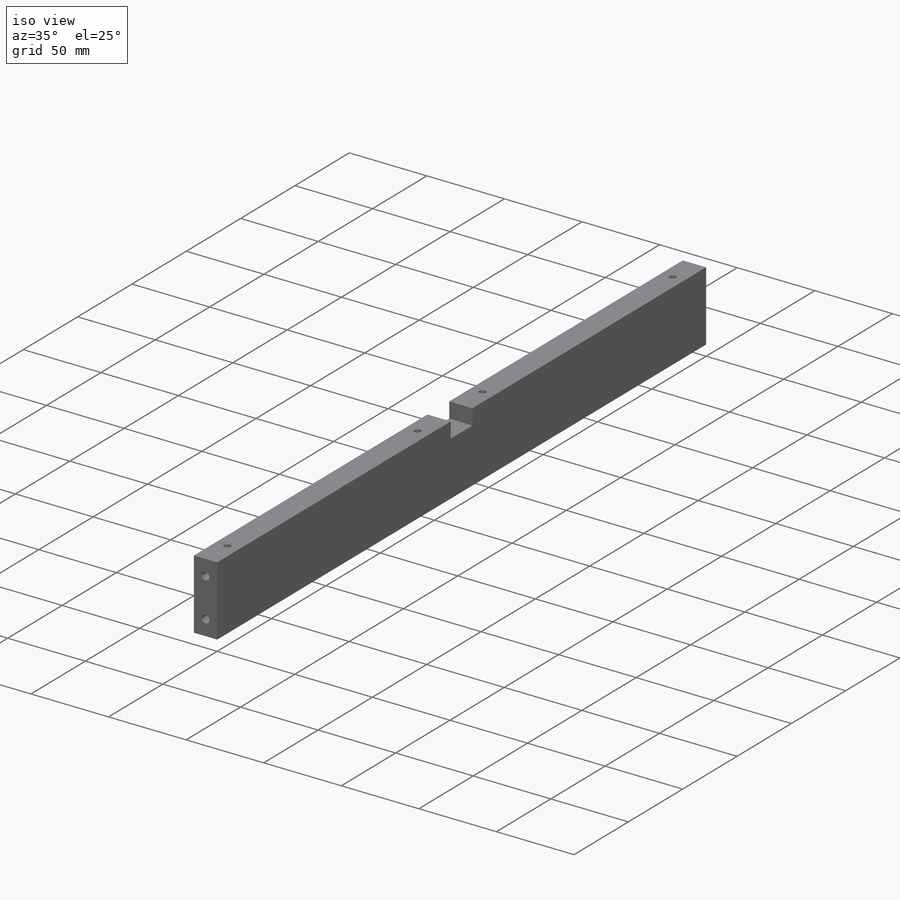
[diagram: iso view]
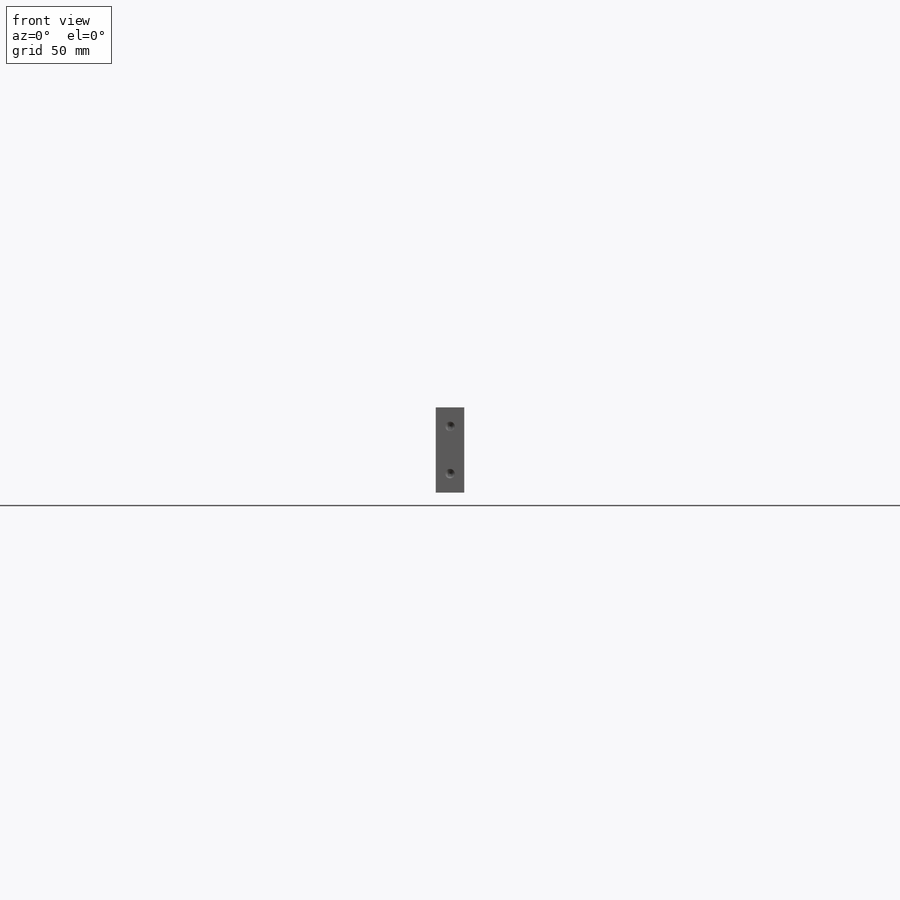
[diagram: front view]
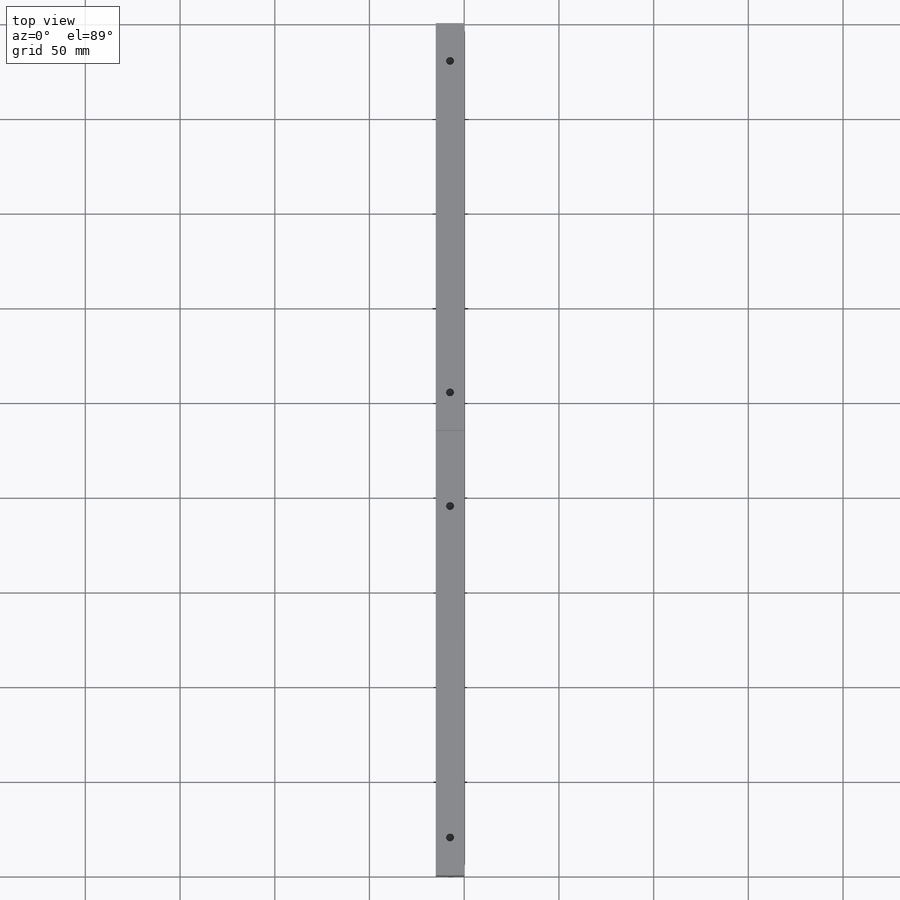
[diagram: top view]
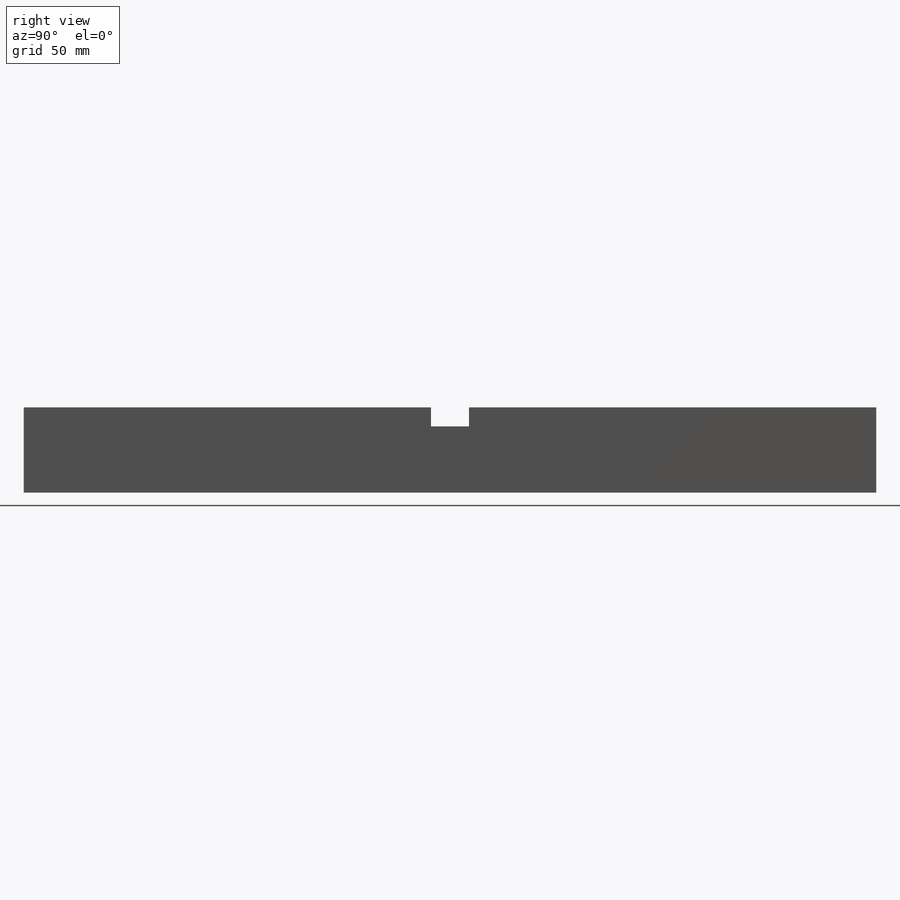
[diagram: right view]
SOLIDWORKS PART (.sldprt)
format: sldprt  version: not decoded by parser v0  size: 272,896 bytes
history: native  units: mm
features: sketch x8, plane x3, hole x3, material x1, extrude x1, cut_extrude x1 (+10 scaffold rows collapsed)
feature tree (27):
  scaffold x10  (default folders/planes/origin — collapsed)
  material  "Matériau <non spécifié>"
  plane  "Plan de face"
  plane  "Plan de dessus"
  plane  "Plan de droite"
  sketch  "Esquisse1"  dims[D1=15.0mm D2=45.0mm]
  extrude  "Boss.-Extru.1"  Depth=450mm
  hole  "Trou pour taraudage pour trou taraudé M61"  Diameter=5mm Depth=10mm
  sketch  "Esquisse7"  dims[D1=10.0mm D2=10.0mm D3=7.5mm D4=7.5mm]
  sketch  "Esquisse6"  dims[hole-wizard template sketch: 47 standard entries collapsed; hole parameters kept: c15.Profondeur du perçage=10.0mm c15.D3=~14.816244mm c15.Angle de pointe=118.0deg]
  hole  "Trou pour taraudage pour trou taraudé M62"  Diameter=5mm Depth=10mm
  sketch  "Esquisse9"  dims[D1=10.0mm D2=10.0mm D3=7.5mm D4=7.5mm]
  sketch  "Esquisse8"  dims[hole-wizard template sketch: 47 standard entries collapsed; hole parameters kept: c15.Profondeur du perçage=10.0mm c15.D3=~14.816244mm c15.Angle de pointe=118.0deg]
  sketch  "Esquisse10"  dims[D1=20.0mm D2=10.0mm D3=215.0mm]
  cut_extrude  "Enlèv. mat.-Extru.1"  Depth=15mm
  hole  "Trou pour taraudage pour trou taraudé M51"  Diameter=4.2mm Depth=25mm
  sketch  "Esquisse12"  dims[D1=20.0mm D2=20.0mm D3=20.0mm D4=20.0mm D5=7.5mm D6=7.5mm D7=7.5mm D8=7.5mm]
  sketch  "Esquisse11"  dims[hole-wizard template sketch: 46 standard entries collapsed; hole parameters kept: c15.Diamètre du perçage=4.2mm c15.Profondeur du perçage=25.0mm c15.D3=~14.816244mm c15.Angle de pointe=118.0deg]
decode coverage: 13 of 13 modeling features carry decoded parameters
note: ~ marks probable driven/reference dimensions
note: suppression state not decoded; provenance and decode notes live in map.json
